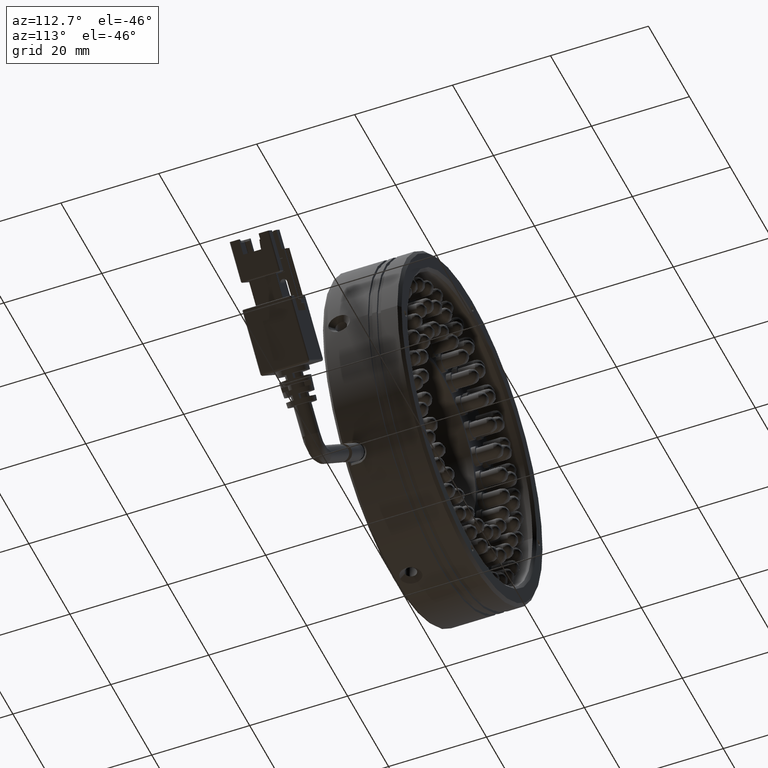
[diagram: clean part render]
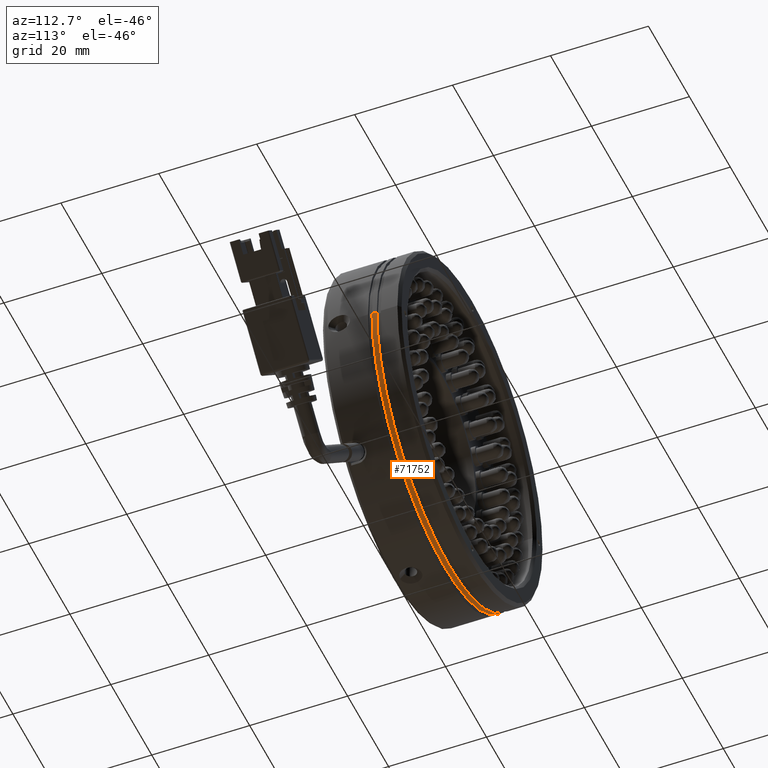
[diagram: same view with one face highlighted and labeled with its STEP entity id]
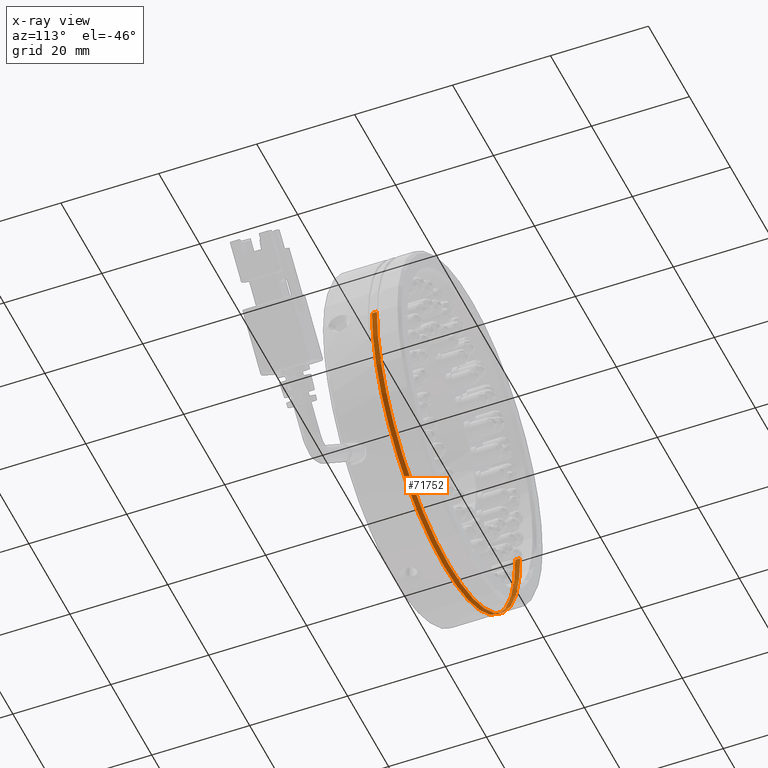
[diagram: x-ray of the same camera — body ghosted, the highlighted face saturated]
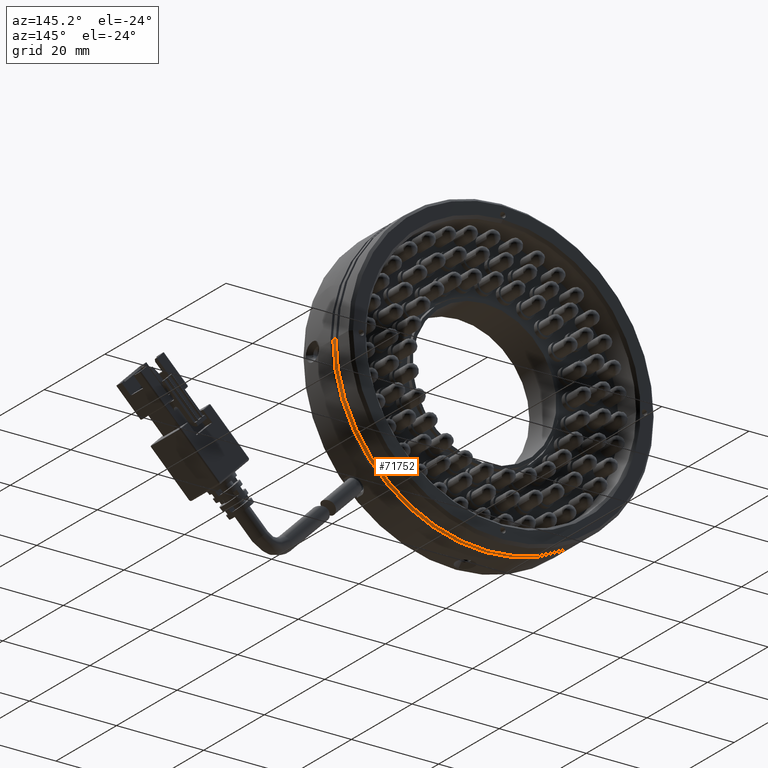
[diagram: same view with one face highlighted and labeled with its STEP entity id]
A machine part, auxiliary view. The second image highlights one B-rep face of the part: STEP entity #71752.
The next image is the same camera in x-ray: the body ghosted, the highlighted face saturated — about 6% of this face is hidden behind the body in this view.
A second angle (auxiliary view) of the same face is appended — the face is thin or edge-on in the first view.
In plain terms, the highlighted cylindrical surface (partial cylindrical patch) has radius 35 mm, axis along (-0, 1, 0).
Its self-contained STEP definition (entity closure, byte-faithful):
#873 = FACE_OUTER_BOUND ( 'NONE', #77358, .T. ) ;
#1551 = CARTESIAN_POINT ( 'NONE',  ( -59.92313932795384800, 6.920185881597998200, 1.220012151806253900E-013 ) ) ;
#3221 = ORIENTED_EDGE ( 'NONE', *, *, #14812, .F. ) ;
#3650 = VECTOR ( 'NONE', #19749, 1000.000000000000000 ) ;
#4618 = CIRCLE ( 'NONE', #64435, 35.00000000000000700 ) ;
#9188 = EDGE_CURVE ( 'NONE', #26047, #80447, #71928, .T. ) ;
#14812 = EDGE_CURVE ( 'NONE', #61047, #80447, #43696, .T. ) ;
#15390 = ORIENTED_EDGE ( 'NONE', *, *, #27771, .T. ) ;
#17336 = VERTEX_POINT ( 'NONE', #47885 ) ;
#19749 = DIRECTION ( 'NONE',  ( -0.0000000000000000000, 1.000000000000000000, 0.0000000000000000000 ) ) ;
#21076 = CARTESIAN_POINT ( 'NONE',  ( 10.07686067204617500, 5.920185881597999100, -1.179095447356140100E-013 ) ) ;
#26047 = VERTEX_POINT ( 'NONE', #1551 ) ;
#27771 = EDGE_CURVE ( 'NONE', #17336, #26047, #40538, .T. ) ;
#29236 = DIRECTION ( 'NONE',  ( 0.0000000000000000000, -1.000000000000000000, -0.0000000000000000000 ) ) ;
#35796 = DIRECTION ( 'NONE',  ( -0.0000000000000000000, 1.000000000000000000, 0.0000000000000000000 ) ) ;
#40538 = LINE ( 'NONE', #59081, #3650 ) ;
#41682 = VECTOR ( 'NONE', #71279, 1000.000000000000000 ) ;
#43696 = LINE ( 'NONE', #64722, #41682 ) ;
#46423 = CARTESIAN_POINT ( 'NONE',  ( 10.07686067204617500, 6.920185881597998200, -1.179095447356140100E-013 ) ) ;
#47885 = CARTESIAN_POINT ( 'NONE',  ( -59.92313932795384800, 5.920185881597999100, 1.220012151806253900E-013 ) ) ;
#49896 = AXIS2_PLACEMENT_3D ( 'NONE', #68545, #29236, #75109 ) ;
#55930 = DIRECTION ( 'NONE',  ( -0.0000000000000000000, 1.000000000000000000, 0.0000000000000000000 ) ) ;
#56789 = DIRECTION ( 'NONE',  ( -1.000000000000000000, 0.0000000000000000000, 3.488528910189358300E-015 ) ) ;
#59081 = CARTESIAN_POINT ( 'NONE',  ( -59.92313932795384800, -3.279814118402000700, 1.220012151806253900E-013 ) ) ;
#61047 = VERTEX_POINT ( 'NONE', #21076 ) ;
#62430 = CYLINDRICAL_SURFACE ( 'NONE', #64509, 35.00000000000000700 ) ;
#64435 = AXIS2_PLACEMENT_3D ( 'NONE', #75107, #35796, #81709 ) ;
#64509 = AXIS2_PLACEMENT_3D ( 'NONE', #69678, #55930, #56789 ) ;
#64722 = CARTESIAN_POINT ( 'NONE',  ( 10.07686067204617500, -3.279814118402000700, -1.179095447356140100E-013 ) ) ;
#66927 = EDGE_CURVE ( 'NONE', #61047, #17336, #4618, .T. ) ;
#68545 = CARTESIAN_POINT ( 'NONE',  ( -24.92313932795383400, 6.920185881597998200, -9.729667600217996800E-017 ) ) ;
#69678 = CARTESIAN_POINT ( 'NONE',  ( -24.92313932795383400, -3.279814118402000700, -9.729667600217996800E-017 ) ) ;
#71279 = DIRECTION ( 'NONE',  ( -0.0000000000000000000, 1.000000000000000000, 0.0000000000000000000 ) ) ;
#71752 = ADVANCED_FACE ( 'NONE', ( #873 ), #62430, .T. ) ;
#71928 = CIRCLE ( 'NONE', #49896, 35.00000000000000700 ) ;
#75107 = CARTESIAN_POINT ( 'NONE',  ( -24.92313932795383400, 5.920185881597999100, -9.729667600217996800E-017 ) ) ;
#75109 = DIRECTION ( 'NONE',  ( -1.000000000000000000, 0.0000000000000000000, 3.488528910189358300E-015 ) ) ;
#77358 = EDGE_LOOP ( 'NONE', ( #3221, #84512, #15390, #83674 ) ) ;
#80447 = VERTEX_POINT ( 'NONE', #46423 ) ;
#81709 = DIRECTION ( 'NONE',  ( -1.000000000000000000, 0.0000000000000000000, 3.488528910189358300E-015 ) ) ;
#83674 = ORIENTED_EDGE ( 'NONE', *, *, #9188, .T. ) ;
#84512 = ORIENTED_EDGE ( 'NONE', *, *, #66927, .T. ) ;